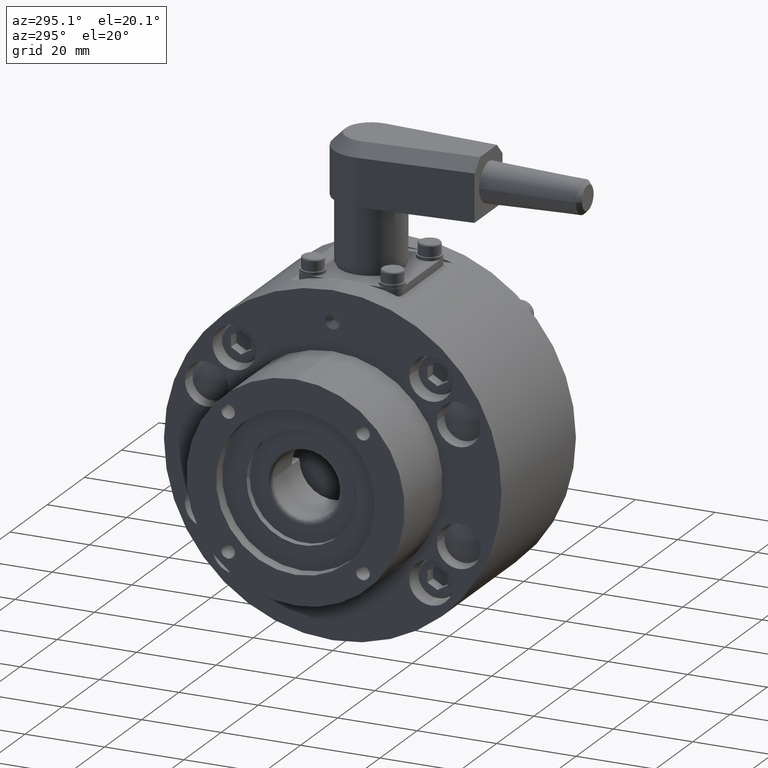
[diagram: clean part render]
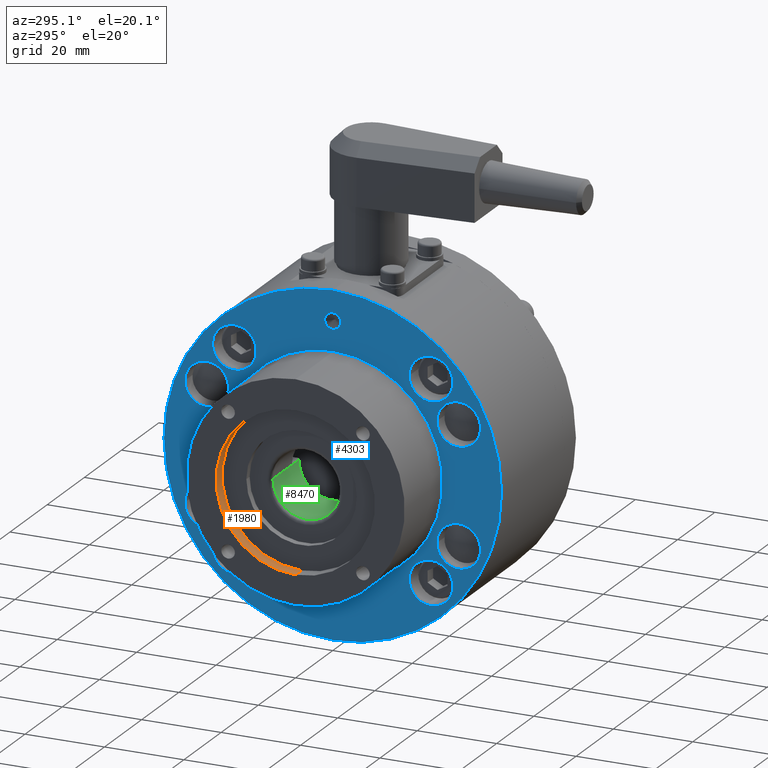
[diagram: same view with three faces highlighted in distinct colors, each labeled with its STEP entity id]
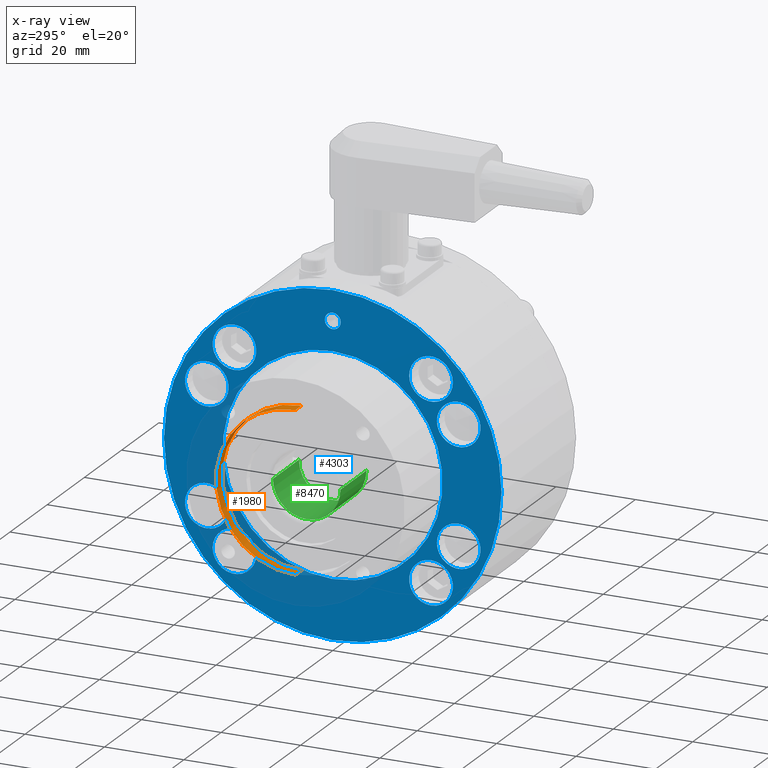
[diagram: x-ray of the same camera — body ghosted, the three highlighted faces saturated]
A machine part, auxiliary view with three faces highlighted in distinct colors.
The next image is the same camera in x-ray (body ghosted, the three faces saturated) — at least one of them is partly hidden behind the body in this view.
Their STEP definitions:

[orange] entity #1980 — the highlighted cylindrical surface (partial cylindrical patch) has radius 20 mm, axis along (1, -0, 0).
#152=CARTESIAN_POINT('',(-23.750000000000000,22.0,0.0));
#153=VERTEX_POINT('',#152);
#154=CARTESIAN_POINT('',(-27.0,22.0,0.0));
#155=VERTEX_POINT('',#154);
#156=CARTESIAN_POINT('',(-23.750000000000000,22.0,0.0));
#157=DIRECTION('',(-1.0,0.0,0.0));
#158=VECTOR('',#157,3.250000000000000);
#159=LINE('',#156,#158);
#160=EDGE_CURVE('',#153,#155,#159,.T.);
#162=CARTESIAN_POINT('',(-23.750000000000000,-18.0,-2.449213E-015));
#163=VERTEX_POINT('',#162);
#171=CARTESIAN_POINT('',(-27.0,-18.0,-2.449213E-015));
#172=VERTEX_POINT('',#171);
#173=CARTESIAN_POINT('',(-23.750000000000000,-18.0,-2.449213E-015));
#174=DIRECTION('',(-1.0,0.0,0.0));
#175=VECTOR('',#174,3.250000000000000);
#176=LINE('',#173,#175);
#177=EDGE_CURVE('',#163,#172,#176,.T.);
#1953=CARTESIAN_POINT('',(-23.750000000000000,2.0,0.0));
#1954=DIRECTION('',(1.0,0.0,0.0));
#1955=DIRECTION('',(0.0,1.0,0.0));
#1956=AXIS2_PLACEMENT_3D('',#1953,#1954,#1955);
#1957=CIRCLE('',#1956,20.0);
#1958=EDGE_CURVE('',#163,#153,#1957,.T.);
#1963=CARTESIAN_POINT('',(-25.375000000000000,2.0,0.0));
#1964=DIRECTION('',(1.0,0.0,0.0));
#1965=DIRECTION('',(0.0,1.0,0.0));
#1966=AXIS2_PLACEMENT_3D('',#1963,#1964,#1965);
#1967=CYLINDRICAL_SURFACE('',#1966,20.0);
#1968=ORIENTED_EDGE('',*,*,#160,.T.);
#1969=CARTESIAN_POINT('',(-27.0,2.0,0.0));
#1970=DIRECTION('',(1.0,0.0,0.0));
#1971=DIRECTION('',(0.0,1.0,0.0));
#1972=AXIS2_PLACEMENT_3D('',#1969,#1970,#1971);
#1973=CIRCLE('',#1972,20.0);
#1974=EDGE_CURVE('',#172,#155,#1973,.T.);
#1975=ORIENTED_EDGE('',*,*,#1974,.F.);
#1976=ORIENTED_EDGE('',*,*,#177,.F.);
#1977=ORIENTED_EDGE('',*,*,#1958,.T.);
#1978=EDGE_LOOP('',(#1968,#1975,#1976,#1977));
#1979=FACE_OUTER_BOUND('',#1978,.T.);
#1980=ADVANCED_FACE('',(#1979),#1967,.F.);

[blue] entity #4303 — the highlighted planar face has unit normal (-1, 0, 0).
#2096=CARTESIAN_POINT('',(-19.0,26.073737341529167,30.248737341529164));
#2097=VERTEX_POINT('',#2096);
#2106=CARTESIAN_POINT('',(-19.0,26.073737341529167,19.248737341529164));
#2107=VERTEX_POINT('',#2106);
#2108=CARTESIAN_POINT('',(-19.0,26.073737341529167,24.748737341529164));
#2109=DIRECTION('',(1.0,0.0,0.0));
#2110=DIRECTION('',(0.0,0.0,1.0));
#2111=AXIS2_PLACEMENT_3D('',#2108,#2109,#2110);
#2112=CIRCLE('',#2111,5.500000000000000);
#2113=EDGE_CURVE('',#2107,#2097,#2112,.T.);
#2180=CARTESIAN_POINT('',(-19.0,31.573737341529171,-24.748737341529161));
#2181=VERTEX_POINT('',#2180);
#2190=CARTESIAN_POINT('',(-19.0,20.573737341529171,-24.748737341529164));
#2191=VERTEX_POINT('',#2190);
#2192=CARTESIAN_POINT('',(-19.0,26.073737341529171,-24.748737341529161));
#2193=DIRECTION('',(1.0,0.0,0.0));
#2194=DIRECTION('',(0.0,1.0,0.0));
#2195=AXIS2_PLACEMENT_3D('',#2192,#2193,#2194);
#2196=CIRCLE('',#2195,5.500000000000000);
#2197=EDGE_CURVE('',#2191,#2181,#2196,.T.);
#2264=CARTESIAN_POINT('',(-19.0,-23.423737341529165,-30.248737341529168));
#2265=VERTEX_POINT('',#2264);
#2274=CARTESIAN_POINT('',(-19.0,-23.423737341529165,-19.248737341529168));
#2275=VERTEX_POINT('',#2274);
#2276=CARTESIAN_POINT('',(-19.0,-23.423737341529165,-24.748737341529168));
#2277=DIRECTION('',(1.0,0.0,0.0));
#2278=DIRECTION('',(0.0,0.0,-1.0));
#2279=AXIS2_PLACEMENT_3D('',#2276,#2277,#2278);
#2280=CIRCLE('',#2279,5.500000000000000);
#2281=EDGE_CURVE('',#2275,#2265,#2280,.T.);
#2348=CARTESIAN_POINT('',(-19.0,-28.923737341529172,24.748737341529161));
#2349=VERTEX_POINT('',#2348);
#2358=CARTESIAN_POINT('',(-19.0,-17.923737341529172,24.748737341529164));
#2359=VERTEX_POINT('',#2358);
#2360=CARTESIAN_POINT('',(-19.0,-23.423737341529172,24.748737341529161));
#2361=DIRECTION('',(1.0,0.0,0.0));
#2362=DIRECTION('',(0.0,-1.0,0.0));
#2363=AXIS2_PLACEMENT_3D('',#2360,#2361,#2362);
#2364=CIRCLE('',#2363,5.500000000000000);
#2365=EDGE_CURVE('',#2359,#2349,#2364,.T.);
#2392=CARTESIAN_POINT('',(-19.0,43.824999999999989,0.0));
#2393=VERTEX_POINT('',#2392);
#2426=CARTESIAN_POINT('',(-19.0,-41.174999999999983,-5.204577E-015));
#2427=VERTEX_POINT('',#2426);
#2434=CARTESIAN_POINT('',(-19.0,1.324999999999999,0.0));
#2435=DIRECTION('',(1.0,0.0,0.0));
#2436=DIRECTION('',(0.0,1.0,0.0));
#2437=AXIS2_PLACEMENT_3D('',#2434,#2435,#2436);
#2438=CIRCLE('',#2437,42.499999999999986);
#2439=EDGE_CURVE('',#2427,#2393,#2438,.T.);
#2709=CARTESIAN_POINT('',(-19.0,38.325000000000003,0.0));
#2710=VERTEX_POINT('',#2709);
#2719=CARTESIAN_POINT('',(-19.0,34.324999999999996,-2.449213E-016));
#2720=VERTEX_POINT('',#2719);
#2721=CARTESIAN_POINT('',(-19.0,36.325000000000003,0.0));
#2722=DIRECTION('',(1.0,0.0,0.0));
#2723=DIRECTION('',(0.0,1.0,0.0));
#2724=AXIS2_PLACEMENT_3D('',#2721,#2722,#2723);
#2725=CIRCLE('',#2724,2.000000000000006);
#2726=EDGE_CURVE('',#2720,#2710,#2725,.T.);
#2744=CARTESIAN_POINT('',(-19.0,29.0,0.0));
#2745=VERTEX_POINT('',#2744);
#2806=CARTESIAN_POINT('',(-19.0,-26.350000000000001,-3.389098E-015));
#2807=VERTEX_POINT('',#2806);
#2814=CARTESIAN_POINT('',(-19.0,1.324999999999999,0.0));
#2815=DIRECTION('',(1.0,0.0,0.0));
#2816=DIRECTION('',(0.0,1.0,0.0));
#2817=AXIS2_PLACEMENT_3D('',#2814,#2815,#2816);
#2818=CIRCLE('',#2817,27.675000000000001);
#2819=EDGE_CURVE('',#2745,#2807,#2818,.T.);
#2871=CARTESIAN_POINT('',(-19.0,16.116639160924482,-26.220772546282749));
#2872=VERTEX_POINT('',#2871);
#2881=CARTESIAN_POINT('',(-19.0,16.116639160924482,-37.220772546282745));
#2882=VERTEX_POINT('',#2881);
#2883=CARTESIAN_POINT('',(-19.0,16.116639160924482,-31.720772546282749));
#2884=DIRECTION('',(1.0,0.0,0.0));
#2885=DIRECTION('',(0.0,0.0,1.0));
#2886=AXIS2_PLACEMENT_3D('',#2883,#2884,#2885);
#2887=CIRCLE('',#2886,5.500000000000000);
#2888=EDGE_CURVE('',#2882,#2872,#2887,.T.);
#2955=CARTESIAN_POINT('',(-19.0,16.116639160924482,37.220772546282745));
#2956=VERTEX_POINT('',#2955);
#2965=CARTESIAN_POINT('',(-19.0,16.116639160924482,26.220772546282749));
#2966=VERTEX_POINT('',#2965);
#2967=CARTESIAN_POINT('',(-19.0,16.116639160924482,31.720772546282749));
#2968=DIRECTION('',(1.0,0.0,0.0));
#2969=DIRECTION('',(0.0,0.0,1.0));
#2970=AXIS2_PLACEMENT_3D('',#2967,#2968,#2969);
#2971=CIRCLE('',#2970,5.500000000000000);
#2972=EDGE_CURVE('',#2966,#2956,#2971,.T.);
#3039=CARTESIAN_POINT('',(-19.0,-13.466639160924480,-26.220772546282756));
#3040=VERTEX_POINT('',#3039);
#3049=CARTESIAN_POINT('',(-19.0,-13.466639160924480,-37.220772546282760));
#3050=VERTEX_POINT('',#3049);
#3051=CARTESIAN_POINT('',(-19.0,-13.466639160924480,-31.720772546282756));
#3052=DIRECTION('',(1.0,0.0,0.0));
#3053=DIRECTION('',(0.0,0.0,1.0));
#3054=AXIS2_PLACEMENT_3D('',#3051,#3052,#3053);
#3055=CIRCLE('',#3054,5.500000000000000);
#3056=EDGE_CURVE('',#3050,#3040,#3055,.T.);
#3123=CARTESIAN_POINT('',(-19.0,-13.466639160924480,37.220772546282745));
#3124=VERTEX_POINT('',#3123);
#3133=CARTESIAN_POINT('',(-19.0,-13.466639160924480,26.220772546282742));
#3134=VERTEX_POINT('',#3133);
#3135=CARTESIAN_POINT('',(-19.0,-13.466639160924480,31.720772546282742));
#3136=DIRECTION('',(1.0,0.0,0.0));
#3137=DIRECTION('',(0.0,0.0,1.0));
#3138=AXIS2_PLACEMENT_3D('',#3135,#3136,#3137);
#3139=CIRCLE('',#3138,5.500000000000000);
#3140=EDGE_CURVE('',#3134,#3124,#3139,.T.);
#3194=CARTESIAN_POINT('',(-19.0,-13.466639160924480,31.720772546282742));
#3195=DIRECTION('',(1.0,0.0,0.0));
#3196=DIRECTION('',(0.0,0.0,1.0));
#3197=AXIS2_PLACEMENT_3D('',#3194,#3195,#3196);
#3198=CIRCLE('',#3197,5.500000000000000);
#3199=EDGE_CURVE('',#3124,#3134,#3198,.T.);
#3256=CARTESIAN_POINT('',(-19.0,-13.466639160924480,-31.720772546282756));
#3257=DIRECTION('',(1.0,0.0,0.0));
#3258=DIRECTION('',(0.0,0.0,1.0));
#3259=AXIS2_PLACEMENT_3D('',#3256,#3257,#3258);
#3260=CIRCLE('',#3259,5.500000000000000);
#3261=EDGE_CURVE('',#3040,#3050,#3260,.T.);
#3318=CARTESIAN_POINT('',(-19.0,16.116639160924482,31.720772546282749));
#3319=DIRECTION('',(1.0,0.0,0.0));
#3320=DIRECTION('',(0.0,0.0,1.0));
#3321=AXIS2_PLACEMENT_3D('',#3318,#3319,#3320);
#3322=CIRCLE('',#3321,5.500000000000000);
#3323=EDGE_CURVE('',#2956,#2966,#3322,.T.);
#3380=CARTESIAN_POINT('',(-19.0,16.116639160924482,-31.720772546282749));
#3381=DIRECTION('',(1.0,0.0,0.0));
#3382=DIRECTION('',(0.0,0.0,1.0));
#3383=AXIS2_PLACEMENT_3D('',#3380,#3381,#3382);
#3384=CIRCLE('',#3383,5.500000000000000);
#3385=EDGE_CURVE('',#2872,#2882,#3384,.T.);
#3592=CARTESIAN_POINT('',(-19.0,1.324999999999999,0.0));
#3593=DIRECTION('',(1.0,0.0,0.0));
#3594=DIRECTION('',(0.0,1.0,0.0));
#3595=AXIS2_PLACEMENT_3D('',#3592,#3593,#3594);
#3596=CIRCLE('',#3595,27.675000000000001);
#3597=EDGE_CURVE('',#2807,#2745,#3596,.T.);
#3674=CARTESIAN_POINT('',(-19.0,36.325000000000003,0.0));
#3675=DIRECTION('',(1.0,0.0,0.0));
#3676=DIRECTION('',(0.0,1.0,0.0));
#3677=AXIS2_PLACEMENT_3D('',#3674,#3675,#3676);
#3678=CIRCLE('',#3677,2.000000000000006);
#3679=EDGE_CURVE('',#2710,#2720,#3678,.T.);
#3903=CARTESIAN_POINT('',(-19.0,1.324999999999999,0.0));
#3904=DIRECTION('',(1.0,0.0,0.0));
#3905=DIRECTION('',(0.0,1.0,0.0));
#3906=AXIS2_PLACEMENT_3D('',#3903,#3904,#3905);
#3907=CIRCLE('',#3906,42.499999999999986);
#3908=EDGE_CURVE('',#2393,#2427,#3907,.T.);
#3957=CARTESIAN_POINT('',(-19.0,-23.423737341529172,24.748737341529161));
#3958=DIRECTION('',(1.0,0.0,0.0));
#3959=DIRECTION('',(0.0,-1.0,0.0));
#3960=AXIS2_PLACEMENT_3D('',#3957,#3958,#3959);
#3961=CIRCLE('',#3960,5.500000000000000);
#3962=EDGE_CURVE('',#2349,#2359,#3961,.T.);
#4019=CARTESIAN_POINT('',(-19.0,-23.423737341529165,-24.748737341529168));
#4020=DIRECTION('',(1.0,0.0,0.0));
#4021=DIRECTION('',(0.0,0.0,-1.0));
#4022=AXIS2_PLACEMENT_3D('',#4019,#4020,#4021);
#4023=CIRCLE('',#4022,5.500000000000000);
#4024=EDGE_CURVE('',#2265,#2275,#4023,.T.);
#4081=CARTESIAN_POINT('',(-19.0,26.073737341529171,-24.748737341529161));
#4082=DIRECTION('',(1.0,0.0,0.0));
#4083=DIRECTION('',(0.0,1.0,0.0));
#4084=AXIS2_PLACEMENT_3D('',#4081,#4082,#4083);
#4085=CIRCLE('',#4084,5.500000000000000);
#4086=EDGE_CURVE('',#2181,#2191,#4085,.T.);
#4143=CARTESIAN_POINT('',(-19.0,26.073737341529167,24.748737341529164));
#4144=DIRECTION('',(1.0,0.0,0.0));
#4145=DIRECTION('',(0.0,0.0,1.0));
#4146=AXIS2_PLACEMENT_3D('',#4143,#4144,#4145);
#4147=CIRCLE('',#4146,5.500000000000000);
#4148=EDGE_CURVE('',#2097,#2107,#4147,.T.);
#4254=CARTESIAN_POINT('',(-19.0,36.625000000000000,0.0));
#4255=DIRECTION('',(-1.0,0.0,0.0));
#4256=DIRECTION('',(0.0,0.0,1.0));
#4257=AXIS2_PLACEMENT_3D('',#4254,#4255,#4256);
#4258=PLANE('',#4257);
#4259=ORIENTED_EDGE('',*,*,#3908,.F.);
#4260=ORIENTED_EDGE('',*,*,#2439,.F.);
#4261=EDGE_LOOP('',(#4259,#4260));
#4262=FACE_OUTER_BOUND('',#4261,.T.);
#4263=ORIENTED_EDGE('',*,*,#3199,.T.);
#4264=ORIENTED_EDGE('',*,*,#3140,.T.);
#4265=EDGE_LOOP('',(#4263,#4264));
#4266=FACE_BOUND('',#4265,.T.);
#4267=ORIENTED_EDGE('',*,*,#3261,.T.);
#4268=ORIENTED_EDGE('',*,*,#3056,.T.);
#4269=EDGE_LOOP('',(#4267,#4268));
#4270=FACE_BOUND('',#4269,.T.);
#4271=ORIENTED_EDGE('',*,*,#3323,.T.);
#4272=ORIENTED_EDGE('',*,*,#2972,.T.);
#4273=EDGE_LOOP('',(#4271,#4272));
#4274=FACE_BOUND('',#4273,.T.);
#4275=ORIENTED_EDGE('',*,*,#3385,.T.);
#4276=ORIENTED_EDGE('',*,*,#2888,.T.);
#4277=EDGE_LOOP('',(#4275,#4276));
#4278=FACE_BOUND('',#4277,.T.);
#4279=ORIENTED_EDGE('',*,*,#3679,.T.);
#4280=ORIENTED_EDGE('',*,*,#2726,.T.);
#4281=EDGE_LOOP('',(#4279,#4280));
#4282=FACE_BOUND('',#4281,.T.);
#4283=ORIENTED_EDGE('',*,*,#3962,.T.);
#4284=ORIENTED_EDGE('',*,*,#2365,.T.);
#4285=EDGE_LOOP('',(#4283,#4284));
#4286=FACE_BOUND('',#4285,.T.);
#4287=ORIENTED_EDGE('',*,*,#4024,.T.);
#4288=ORIENTED_EDGE('',*,*,#2281,.T.);
#4289=EDGE_LOOP('',(#4287,#4288));
#4290=FACE_BOUND('',#4289,.T.);
#4291=ORIENTED_EDGE('',*,*,#4086,.T.);
#4292=ORIENTED_EDGE('',*,*,#2197,.T.);
#4293=EDGE_LOOP('',(#4291,#4292));
#4294=FACE_BOUND('',#4293,.T.);
#4295=ORIENTED_EDGE('',*,*,#4148,.T.);
#4296=ORIENTED_EDGE('',*,*,#2113,.T.);
#4297=EDGE_LOOP('',(#4295,#4296));
#4298=FACE_BOUND('',#4297,.T.);
#4299=ORIENTED_EDGE('',*,*,#2819,.T.);
#4300=ORIENTED_EDGE('',*,*,#3597,.T.);
#4301=EDGE_LOOP('',(#4299,#4300));
#4302=FACE_BOUND('',#4301,.T.);
#4303=ADVANCED_FACE('',(#4262,#4266,#4270,#4274,#4278,#4282,#4286,#4290,#4294,#4298,#4302),#4258,.T.);

[green] entity #8470 — the highlighted cylindrical surface (partial cylindrical patch) has radius 8.5 mm, axis along (1, 0, -0).
#8092=CARTESIAN_POINT('',(-5.0,0.0,-8.500000000000000));
#8093=VERTEX_POINT('',#8092);
#8119=CARTESIAN_POINT('',(-5.0,-8.500000000000000,-1.040915E-015));
#8120=VERTEX_POINT('',#8119);
#8128=CARTESIAN_POINT('',(-5.0,0.0,0.0));
#8129=DIRECTION('',(1.0,0.0,0.0));
#8130=DIRECTION('',(0.0,-1.0,0.0));
#8131=AXIS2_PLACEMENT_3D('',#8128,#8129,#8130);
#8132=CIRCLE('',#8131,8.500000000000000);
#8133=EDGE_CURVE('',#8120,#8093,#8132,.T.);
#8186=CARTESIAN_POINT('',(5.0,8.500000000000000,-2.081831E-015));
#8187=VERTEX_POINT('',#8186);
#8188=CARTESIAN_POINT('',(-5.0,8.500000000000000,0.0));
#8189=VERTEX_POINT('',#8188);
#8190=CARTESIAN_POINT('',(5.0,8.500000000000000,-2.081831E-015));
#8191=DIRECTION('',(-1.0,0.0,0.0));
#8192=VECTOR('',#8191,10.0);
#8193=LINE('',#8190,#8192);
#8194=EDGE_CURVE('',#8187,#8189,#8193,.T.);
#8196=CARTESIAN_POINT('',(5.0,-8.500000000000000,-1.040950E-015));
#8197=VERTEX_POINT('',#8196);
#8205=CARTESIAN_POINT('',(5.0,-8.500000000000000,-1.040950E-015));
#8206=DIRECTION('',(-1.0,0.0,0.0));
#8207=VECTOR('',#8206,10.0);
#8208=LINE('',#8205,#8207);
#8209=EDGE_CURVE('',#8197,#8120,#8208,.T.);
#8319=CARTESIAN_POINT('',(9.0,8.500000000000000,0.0));
#8320=VERTEX_POINT('',#8319);
#8321=CARTESIAN_POINT('',(5.0,8.500000000000000,-2.081831E-015));
#8322=DIRECTION('',(1.0,0.0,0.0));
#8323=VECTOR('',#8322,4.0);
#8324=LINE('',#8321,#8323);
#8325=EDGE_CURVE('',#8187,#8320,#8324,.T.);
#8387=CARTESIAN_POINT('',(9.0,-8.500000000000000,-1.040950E-015));
#8388=VERTEX_POINT('',#8387);
#8398=CARTESIAN_POINT('',(9.0,0.0,0.0));
#8399=DIRECTION('',(-1.0,0.0,0.0));
#8400=DIRECTION('',(0.0,0.0,-1.0));
#8401=AXIS2_PLACEMENT_3D('',#8398,#8399,#8400);
#8402=CIRCLE('',#8401,8.500000000000000);
#8403=EDGE_CURVE('',#8320,#8388,#8402,.T.);
#8416=CARTESIAN_POINT('',(5.0,-8.500000000000000,-1.040950E-015));
#8417=DIRECTION('',(1.0,0.0,0.0));
#8418=VECTOR('',#8417,4.0);
#8419=LINE('',#8416,#8418);
#8420=EDGE_CURVE('',#8197,#8388,#8419,.T.);
#8450=CARTESIAN_POINT('',(0.0,0.0,0.0));
#8451=DIRECTION('',(1.0,0.0,0.0));
#8452=DIRECTION('',(0.0,1.0,0.0));
#8453=AXIS2_PLACEMENT_3D('',#8450,#8451,#8452);
#8454=CYLINDRICAL_SURFACE('',#8453,8.500000000000000);
#8455=ORIENTED_EDGE('',*,*,#8194,.T.);
#8456=CARTESIAN_POINT('',(-5.0,0.0,0.0));
#8457=DIRECTION('',(1.0,0.0,0.0));
#8458=DIRECTION('',(0.0,-1.0,0.0));
#8459=AXIS2_PLACEMENT_3D('',#8456,#8457,#8458);
#8460=CIRCLE('',#8459,8.500000000000000);
#8461=EDGE_CURVE('',#8093,#8189,#8460,.T.);
#8462=ORIENTED_EDGE('',*,*,#8461,.F.);
#8463=ORIENTED_EDGE('',*,*,#8133,.F.);
#8464=ORIENTED_EDGE('',*,*,#8209,.F.);
#8465=ORIENTED_EDGE('',*,*,#8420,.T.);
#8466=ORIENTED_EDGE('',*,*,#8403,.F.);
#8467=ORIENTED_EDGE('',*,*,#8325,.F.);
#8468=EDGE_LOOP('',(#8455,#8462,#8463,#8464,#8465,#8466,#8467));
#8469=FACE_OUTER_BOUND('',#8468,.T.);
#8470=ADVANCED_FACE('',(#8469),#8454,.F.);